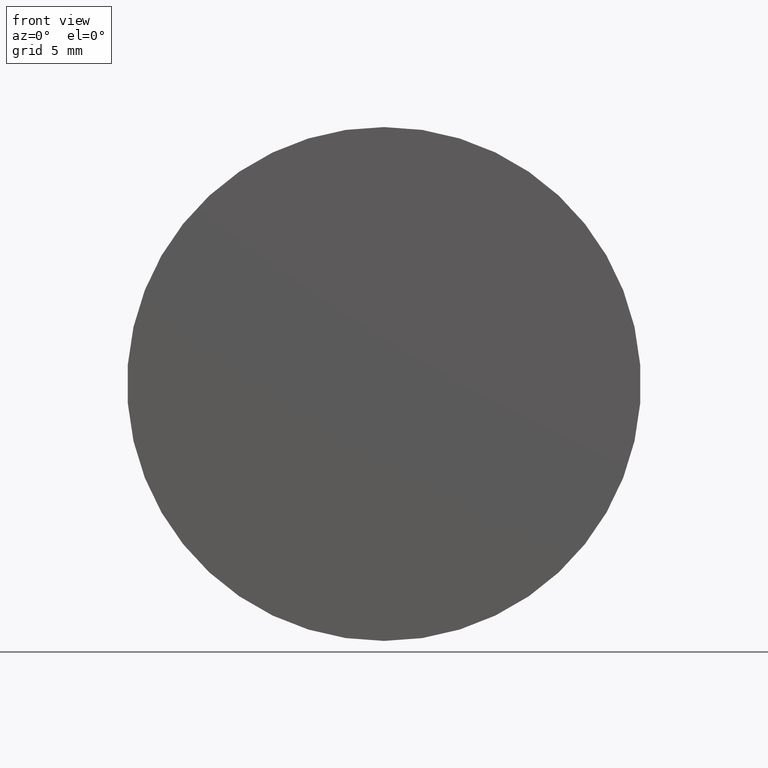
[diagram: clean part render]
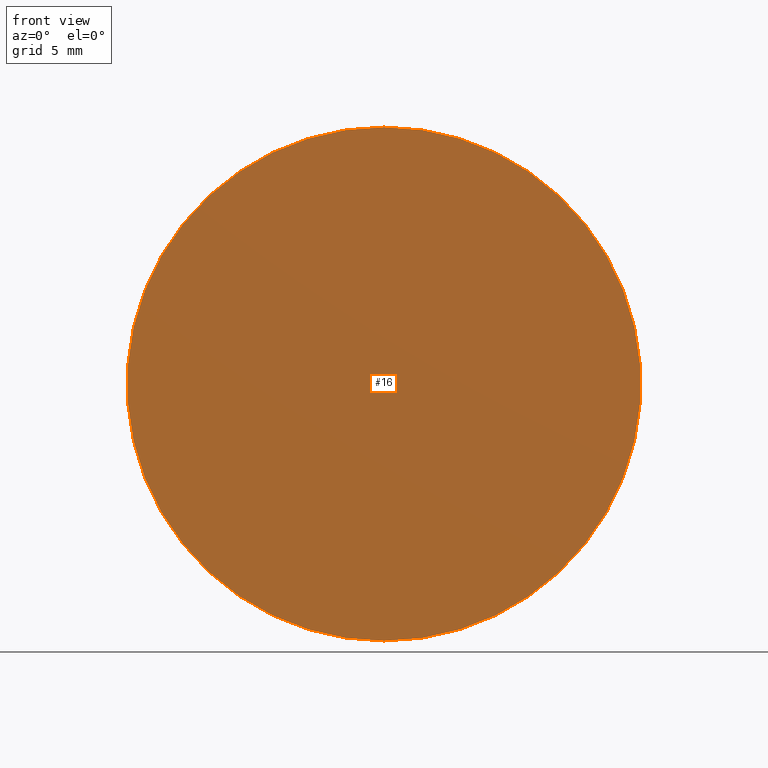
[diagram: same view with one face highlighted and labeled with its STEP entity id]
A machine part, front view. The second image highlights one B-rep face of the part: STEP entity #16.
In plain terms, the highlighted planar face has unit normal (0, -1, 0).
Its self-contained STEP definition (entity closure, byte-faithful):
#15 = DIRECTION ( 'NONE',  ( 0.000000000000000000, -0.000000000000000000, -1.000000000000000000 ) ) ;
#16 = ADVANCED_FACE ( 'NONE', ( #197 ), #26, .T. ) ;
#18 = CARTESIAN_POINT ( 'NONE',  ( 1.836970198721029589E-15, -1.734723475976807094E-15, -15.00000000000000000 ) ) ;
#26 = PLANE ( 'NONE',  #201 ) ;
#45 = DIRECTION ( 'NONE',  ( -0.000000000000000000, 1.000000000000000000, -0.000000000000000000 ) ) ;
#58 = CIRCLE ( 'NONE', #145, 15.00000000000000000 ) ;
#63 = CARTESIAN_POINT ( 'NONE',  ( 0.000000000000000000, -1.734723475976807094E-15, 0.000000000000000000 ) ) ;
#66 = CIRCLE ( 'NONE', #137, 15.00000000000000000 ) ;
#69 = EDGE_LOOP ( 'NONE', ( #133, #154 ) ) ;
#100 = VERTEX_POINT ( 'NONE', #102 ) ;
#102 = CARTESIAN_POINT ( 'NONE',  ( 0.000000000000000000, -1.734723475976807094E-15, 15.00000000000000000 ) ) ;
#106 = CARTESIAN_POINT ( 'NONE',  ( 0.000000000000000000, -1.734723475976807094E-15, 0.000000000000000000 ) ) ;
#116 = CARTESIAN_POINT ( 'NONE',  ( 0.000000000000000000, -9.184850993605147944E-16, 0.000000000000000000 ) ) ;
#122 = DIRECTION ( 'NONE',  ( -0.000000000000000000, 1.000000000000000000, -0.000000000000000000 ) ) ;
#123 = DIRECTION ( 'NONE',  ( 0.000000000000000000, 0.000000000000000000, 1.000000000000000000 ) ) ;
#132 = VERTEX_POINT ( 'NONE', #18 ) ;
#133 = ORIENTED_EDGE ( 'NONE', *, *, #144, .F. ) ;
#137 = AXIS2_PLACEMENT_3D ( 'NONE', #63, #122, #157 ) ;
#144 = EDGE_CURVE ( 'NONE', #100, #132, #66, .T. ) ;
#145 = AXIS2_PLACEMENT_3D ( 'NONE', #106, #45, #123 ) ;
#148 = DIRECTION ( 'NONE',  ( 0.000000000000000000, -1.000000000000000000, 0.000000000000000000 ) ) ;
#154 = ORIENTED_EDGE ( 'NONE', *, *, #168, .F. ) ;
#157 = DIRECTION ( 'NONE',  ( 0.000000000000000000, 0.000000000000000000, 1.000000000000000000 ) ) ;
#168 = EDGE_CURVE ( 'NONE', #132, #100, #58, .T. ) ;
#197 = FACE_OUTER_BOUND ( 'NONE', #69, .T. ) ;
#201 = AXIS2_PLACEMENT_3D ( 'NONE', #116, #148, #15 ) ;